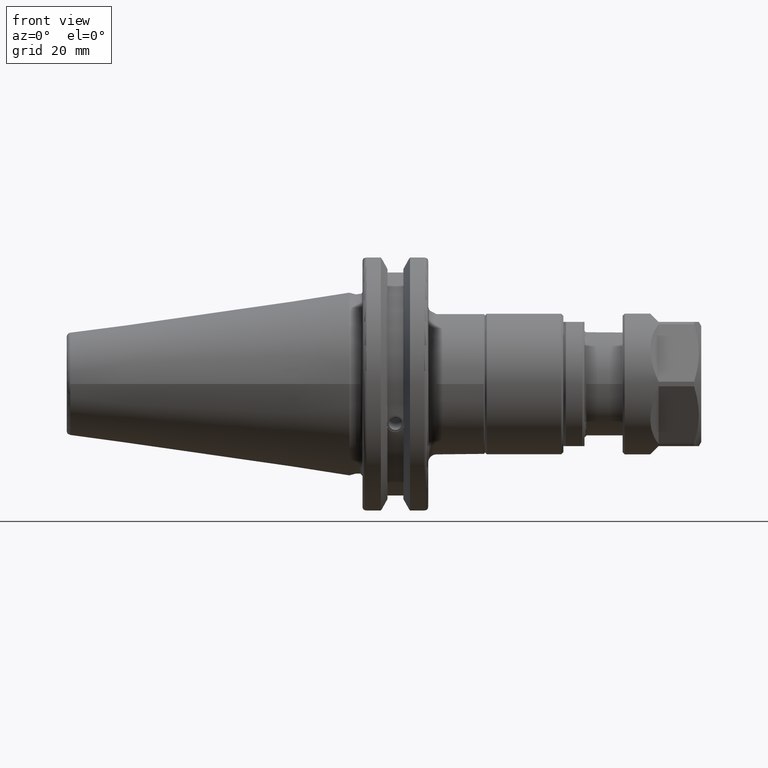
[diagram: clean part render]
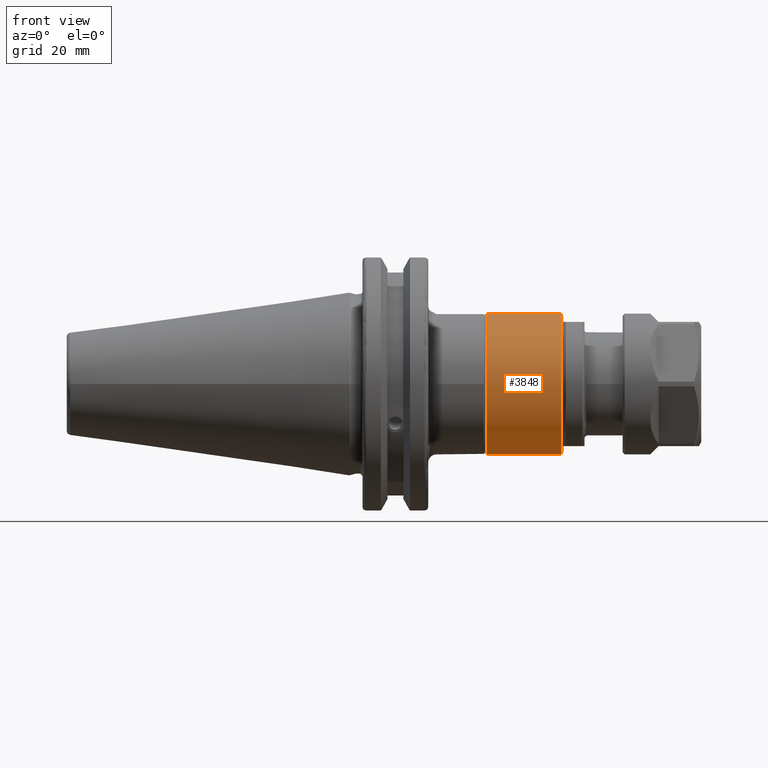
[diagram: same view with one face highlighted and labeled with its STEP entity id]
A machine part, front view. The second image highlights one B-rep face of the part: STEP entity #3848.
In plain terms, the highlighted cylindrical surface (bore or boss wall) has radius 17 mm, axis along (1, 0, 0).
Its self-contained STEP definition (entity closure, byte-faithful):
#348=CYLINDRICAL_SURFACE('',#4444,17.);
#530=FACE_OUTER_BOUND('',#778,.T.);
#778=EDGE_LOOP('',(#3456,#3457,#3458,#3459,#3460,#3461));
#977=LINE('',#7201,#1165);
#1165=VECTOR('',#5584,17.);
#1445=CIRCLE('',#4442,17.);
#1446=CIRCLE('',#4443,17.);
#1447=CIRCLE('',#4445,17.);
#1448=CIRCLE('',#4446,17.);
#1836=VERTEX_POINT('',#7194);
#1837=VERTEX_POINT('',#7196);
#1838=VERTEX_POINT('',#7200);
#1839=VERTEX_POINT('',#7202);
#2388=EDGE_CURVE('',#1836,#1837,#1445,.T.);
#2389=EDGE_CURVE('',#1837,#1836,#1446,.T.);
#2390=EDGE_CURVE('',#1837,#1838,#977,.T.);
#2391=EDGE_CURVE('',#1839,#1838,#1447,.T.);
#2392=EDGE_CURVE('',#1838,#1839,#1448,.T.);
#3456=ORIENTED_EDGE('',*,*,#2388,.F.);
#3457=ORIENTED_EDGE('',*,*,#2389,.F.);
#3458=ORIENTED_EDGE('',*,*,#2390,.T.);
#3459=ORIENTED_EDGE('',*,*,#2391,.F.);
#3460=ORIENTED_EDGE('',*,*,#2392,.F.);
#3461=ORIENTED_EDGE('',*,*,#2390,.F.);
#3848=ADVANCED_FACE('',(#530),#348,.T.);
#4442=AXIS2_PLACEMENT_3D('',#7197,#5578,#5579);
#4443=AXIS2_PLACEMENT_3D('',#7198,#5580,#5581);
#4444=AXIS2_PLACEMENT_3D('',#7199,#5582,#5583);
#4445=AXIS2_PLACEMENT_3D('',#7203,#5585,#5586);
#4446=AXIS2_PLACEMENT_3D('',#7204,#5587,#5588);
#5578=DIRECTION('center_axis',(1.,0.,0.));
#5579=DIRECTION('ref_axis',(0.,-1.,0.));
#5580=DIRECTION('center_axis',(1.,0.,0.));
#5581=DIRECTION('ref_axis',(0.,-1.,0.));
#5582=DIRECTION('center_axis',(1.,0.,0.));
#5583=DIRECTION('ref_axis',(0.,1.,0.));
#5584=DIRECTION('',(-1.,0.,0.));
#5585=DIRECTION('center_axis',(-1.,0.,0.));
#5586=DIRECTION('ref_axis',(0.,-1.,0.));
#5587=DIRECTION('center_axis',(-1.,0.,0.));
#5588=DIRECTION('ref_axis',(0.,-1.,0.));
#7194=CARTESIAN_POINT('',(18.5,17.,2.0818995585505E-15));
#7196=CARTESIAN_POINT('',(18.5,-17.,-2.0818995585505E-15));
#7197=CARTESIAN_POINT('Origin',(18.5,0.,0.));
#7198=CARTESIAN_POINT('Origin',(18.5,0.,0.));
#7199=CARTESIAN_POINT('Origin',(9.5,0.,0.));
#7200=CARTESIAN_POINT('',(0.499999999999998,-17.,-2.0818995585505E-15));
#7201=CARTESIAN_POINT('',(9.5,-17.,-2.0818995585505E-15));
#7202=CARTESIAN_POINT('',(0.499999999999998,17.,-2.0818995585505E-15));
#7203=CARTESIAN_POINT('Origin',(0.499999999999998,0.,0.));
#7204=CARTESIAN_POINT('Origin',(0.499999999999998,0.,0.));